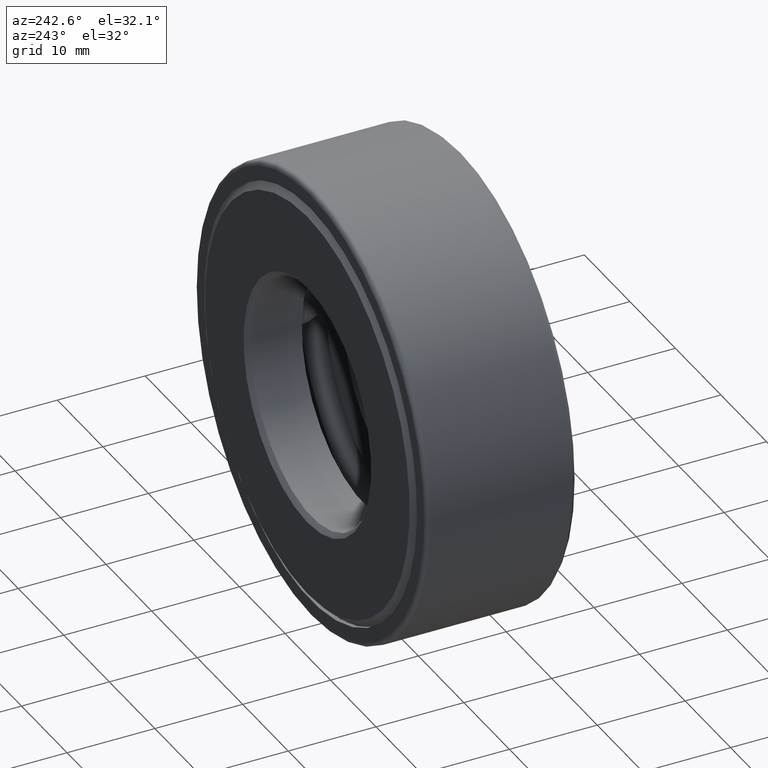
[diagram: clean part render]
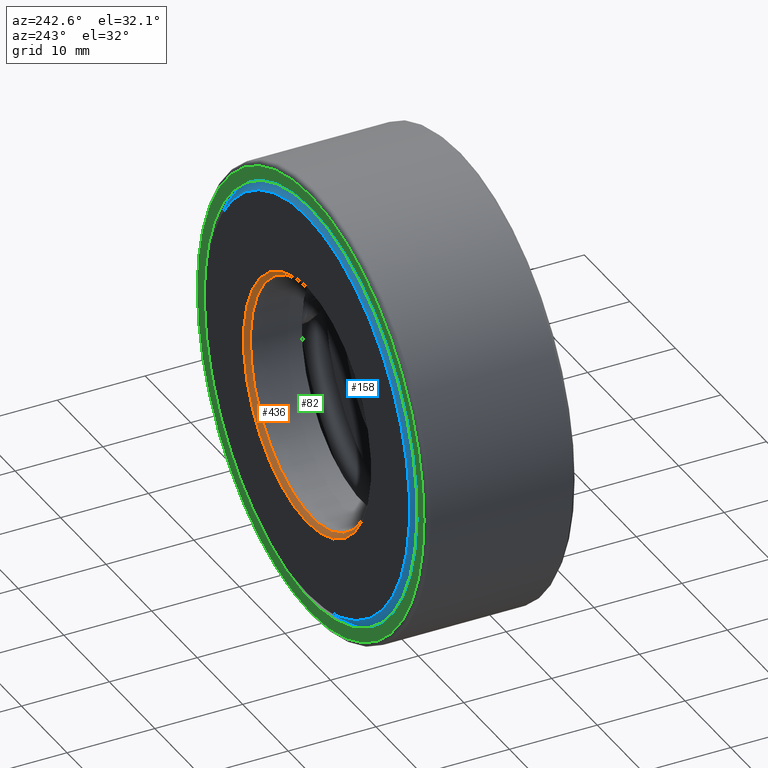
[diagram: same view with three faces highlighted in distinct colors, each labeled with its STEP entity id]
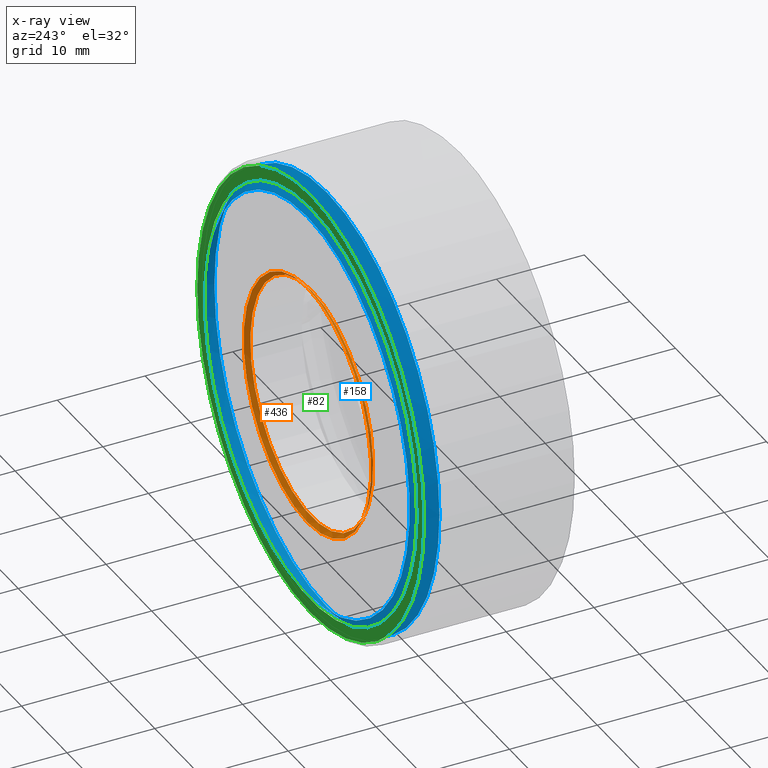
[diagram: x-ray of the same camera — body ghosted, the three highlighted faces saturated]
A machine part, auxiliary view with three faces highlighted in distinct colors.
The next image is the same camera in x-ray (body ghosted, the three faces saturated) — at least one of them is partly hidden behind the body in this view.
Their STEP definitions:

[orange] entity #436 — the highlighted conical surface has half-angle 45 deg.
#39 = VERTEX_POINT ( 'NONE', #271 ) ;
#54 = DIRECTION ( 'NONE',  ( 0.0000000000000000000, 0.0000000000000000000, 1.000000000000000000 ) ) ;
#58 = EDGE_CURVE ( 'NONE', #496, #496, #281, .T. ) ;
#108 = EDGE_LOOP ( 'NONE', ( #323 ) ) ;
#128 = DIRECTION ( 'NONE',  ( -0.0000000000000000000, 1.000000000000000000, -0.0000000000000000000 ) ) ;
#193 = DIRECTION ( 'NONE',  ( -0.0000000000000000000, 1.000000000000000000, -0.0000000000000000000 ) ) ;
#210 = AXIS2_PLACEMENT_3D ( 'NONE', #243, #556, #54 ) ;
#214 = CIRCLE ( 'NONE', #334, 0.5312500000000000000 ) ;
#243 = CARTESIAN_POINT ( 'NONE',  ( 0.0000000000000000000, 0.6675000000000000900, 0.0000000000000000000 ) ) ;
#271 = CARTESIAN_POINT ( 'NONE',  ( 0.0000000000000000000, 0.6675000000000000900, 0.5312500000000000000 ) ) ;
#280 = AXIS2_PLACEMENT_3D ( 'NONE', #544, #128, #547 ) ;
#281 = CIRCLE ( 'NONE', #280, 0.5512500000000001300 ) ;
#323 = ORIENTED_EDGE ( 'NONE', *, *, #58, .T. ) ;
#334 = AXIS2_PLACEMENT_3D ( 'NONE', #416, #193, #418 ) ;
#416 = CARTESIAN_POINT ( 'NONE',  ( 0.0000000000000000000, 0.6675000000000000900, 0.0000000000000000000 ) ) ;
#418 = DIRECTION ( 'NONE',  ( 0.0000000000000000000, 0.0000000000000000000, 1.000000000000000000 ) ) ;
#424 = EDGE_CURVE ( 'NONE', #39, #39, #214, .T. ) ;
#436 = ADVANCED_FACE ( 'NONE', ( #590, #564 ), #476, .F. ) ;
#476 = CONICAL_SURFACE ( 'NONE', #210, 0.5312500000000000000, 0.7853981633974517200 ) ;
#482 = CARTESIAN_POINT ( 'NONE',  ( 0.0000000000000000000, 0.6875000000000000000, 0.5512500000000001300 ) ) ;
#490 = ORIENTED_EDGE ( 'NONE', *, *, #424, .F. ) ;
#496 = VERTEX_POINT ( 'NONE', #482 ) ;
#497 = EDGE_LOOP ( 'NONE', ( #490 ) ) ;
#544 = CARTESIAN_POINT ( 'NONE',  ( 0.0000000000000000000, 0.6875000000000000000, 0.0000000000000000000 ) ) ;
#547 = DIRECTION ( 'NONE',  ( 0.0000000000000000000, 0.0000000000000000000, 1.000000000000000000 ) ) ;
#556 = DIRECTION ( 'NONE',  ( -0.0000000000000000000, 1.000000000000000000, -0.0000000000000000000 ) ) ;
#564 = FACE_BOUND ( 'NONE', #497, .T. ) ;
#590 = FACE_OUTER_BOUND ( 'NONE', #108, .T. ) ;

[blue] entity #158 — the highlighted conical surface has half-angle 45 deg.
#3 = DIRECTION ( 'NONE',  ( 0.0000000000000000000, 0.0000000000000000000, 1.000000000000000000 ) ) ;
#29 = EDGE_CURVE ( 'NONE', #127, #127, #250, .T. ) ;
#42 = CARTESIAN_POINT ( 'NONE',  ( 0.0000000000000000000, 0.5995000000000001400, 0.0000000000000000000 ) ) ;
#83 = DIRECTION ( 'NONE',  ( 0.0000000000000000000, 0.0000000000000000000, -1.000000000000000000 ) ) ;
#86 = FACE_BOUND ( 'NONE', #305, .T. ) ;
#127 = VERTEX_POINT ( 'NONE', #438 ) ;
#129 = ORIENTED_EDGE ( 'NONE', *, *, #29, .F. ) ;
#141 = DIRECTION ( 'NONE',  ( -0.0000000000000000000, 1.000000000000000000, -0.0000000000000000000 ) ) ;
#158 = ADVANCED_FACE ( 'NONE', ( #587, #86 ), #166, .T. ) ;
#166 = CONICAL_SURFACE ( 'NONE', #298, 0.8849999999999996800, 0.7853981633974482800 ) ;
#180 = DIRECTION ( 'NONE',  ( 0.0000000000000000000, 0.0000000000000000000, 1.000000000000000000 ) ) ;
#182 = CARTESIAN_POINT ( 'NONE',  ( 0.0000000000000000000, 0.6875000000000000000, 0.0000000000000000000 ) ) ;
#215 = ORIENTED_EDGE ( 'NONE', *, *, #354, .T. ) ;
#226 = DIRECTION ( 'NONE',  ( -0.0000000000000000000, 1.000000000000000000, -0.0000000000000000000 ) ) ;
#250 = CIRCLE ( 'NONE', #365, 0.8849999999999996800 ) ;
#298 = AXIS2_PLACEMENT_3D ( 'NONE', #182, #452, #83 ) ;
#300 = VERTEX_POINT ( 'NONE', #403 ) ;
#305 = EDGE_LOOP ( 'NONE', ( #129 ) ) ;
#340 = CIRCLE ( 'NONE', #511, 0.9729999999999995300 ) ;
#354 = EDGE_CURVE ( 'NONE', #300, #300, #340, .T. ) ;
#365 = AXIS2_PLACEMENT_3D ( 'NONE', #412, #226, #180 ) ;
#403 = CARTESIAN_POINT ( 'NONE',  ( 0.0000000000000000000, 0.5995000000000001400, 0.9729999999999995300 ) ) ;
#412 = CARTESIAN_POINT ( 'NONE',  ( 0.0000000000000000000, 0.6875000000000000000, 0.0000000000000000000 ) ) ;
#438 = CARTESIAN_POINT ( 'NONE',  ( 0.0000000000000000000, 0.6875000000000000000, 0.8849999999999996800 ) ) ;
#452 = DIRECTION ( 'NONE',  ( 0.0000000000000000000, -1.000000000000000000, 0.0000000000000000000 ) ) ;
#511 = AXIS2_PLACEMENT_3D ( 'NONE', #42, #141, #3 ) ;
#516 = EDGE_LOOP ( 'NONE', ( #215 ) ) ;
#587 = FACE_OUTER_BOUND ( 'NONE', #516, .T. ) ;

[green] entity #82 — the highlighted planar face has unit normal (0, -1, 0).
#31 = VERTEX_POINT ( 'NONE', #527 ) ;
#34 = DIRECTION ( 'NONE',  ( 0.0000000000000000000, -1.000000000000000000, 0.0000000000000000000 ) ) ;
#75 = CARTESIAN_POINT ( 'NONE',  ( 0.0000000000000000000, 0.6724999999999998800, 0.9200000000000000400 ) ) ;
#81 = DIRECTION ( 'NONE',  ( -0.0000000000000000000, 1.000000000000000000, -0.0000000000000000000 ) ) ;
#82 = ADVANCED_FACE ( 'NONE', ( #368, #479 ), #539, .F. ) ;
#87 = DIRECTION ( 'NONE',  ( 0.0000000000000000000, -0.0000000000000000000, -1.000000000000000000 ) ) ;
#102 = EDGE_CURVE ( 'NONE', #31, #31, #120, .T. ) ;
#120 = CIRCLE ( 'NONE', #392, 0.9799999999999999800 ) ;
#204 = EDGE_LOOP ( 'NONE', ( #302 ) ) ;
#206 = DIRECTION ( 'NONE',  ( 0.0000000000000000000, 0.0000000000000000000, 1.000000000000000000 ) ) ;
#238 = CIRCLE ( 'NONE', #531, 0.9200000000000000400 ) ;
#268 = VERTEX_POINT ( 'NONE', #75 ) ;
#275 = CARTESIAN_POINT ( 'NONE',  ( 0.0000000000000000000, 0.6724999999999998800, 0.0000000000000000000 ) ) ;
#282 = CARTESIAN_POINT ( 'NONE',  ( 0.0000000000000000000, 0.6724999999999998800, 0.0000000000000000000 ) ) ;
#302 = ORIENTED_EDGE ( 'NONE', *, *, #464, .F. ) ;
#368 = FACE_BOUND ( 'NONE', #204, .T. ) ;
#369 = DIRECTION ( 'NONE',  ( 0.0000000000000000000, 0.0000000000000000000, 1.000000000000000000 ) ) ;
#387 = CARTESIAN_POINT ( 'NONE',  ( 0.0000000000000000000, 0.6724999999999998800, 0.0000000000000000000 ) ) ;
#392 = AXIS2_PLACEMENT_3D ( 'NONE', #275, #81, #369 ) ;
#406 = AXIS2_PLACEMENT_3D ( 'NONE', #282, #34, #87 ) ;
#464 = EDGE_CURVE ( 'NONE', #268, #268, #238, .T. ) ;
#479 = FACE_OUTER_BOUND ( 'NONE', #596, .T. ) ;
#527 = CARTESIAN_POINT ( 'NONE',  ( 0.0000000000000000000, 0.6724999999999998800, 0.9799999999999999800 ) ) ;
#531 = AXIS2_PLACEMENT_3D ( 'NONE', #387, #569, #206 ) ;
#539 = PLANE ( 'NONE',  #406 ) ;
#546 = ORIENTED_EDGE ( 'NONE', *, *, #102, .T. ) ;
#569 = DIRECTION ( 'NONE',  ( -0.0000000000000000000, 1.000000000000000000, -0.0000000000000000000 ) ) ;
#596 = EDGE_LOOP ( 'NONE', ( #546 ) ) ;